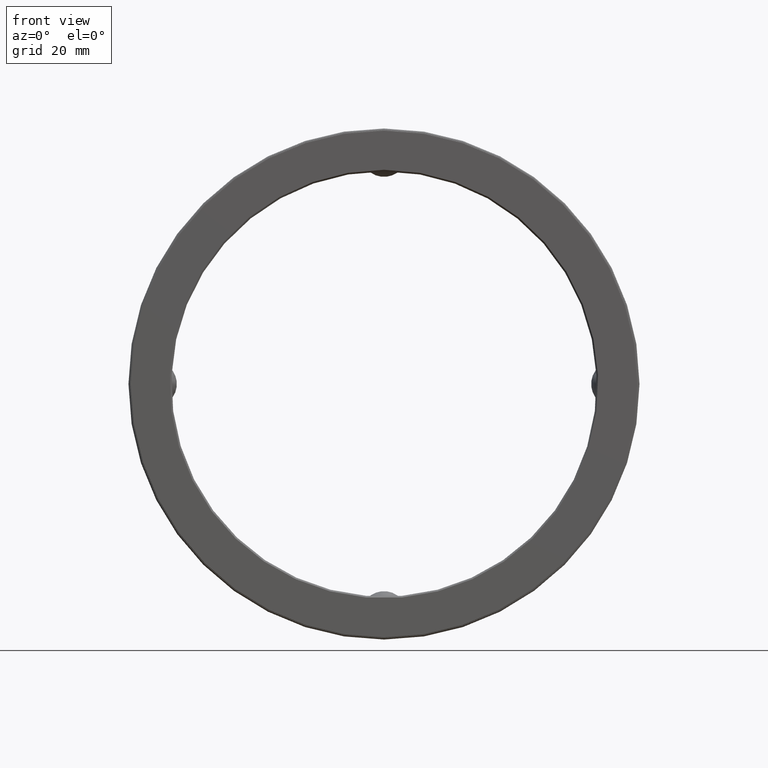
[diagram: clean part render]
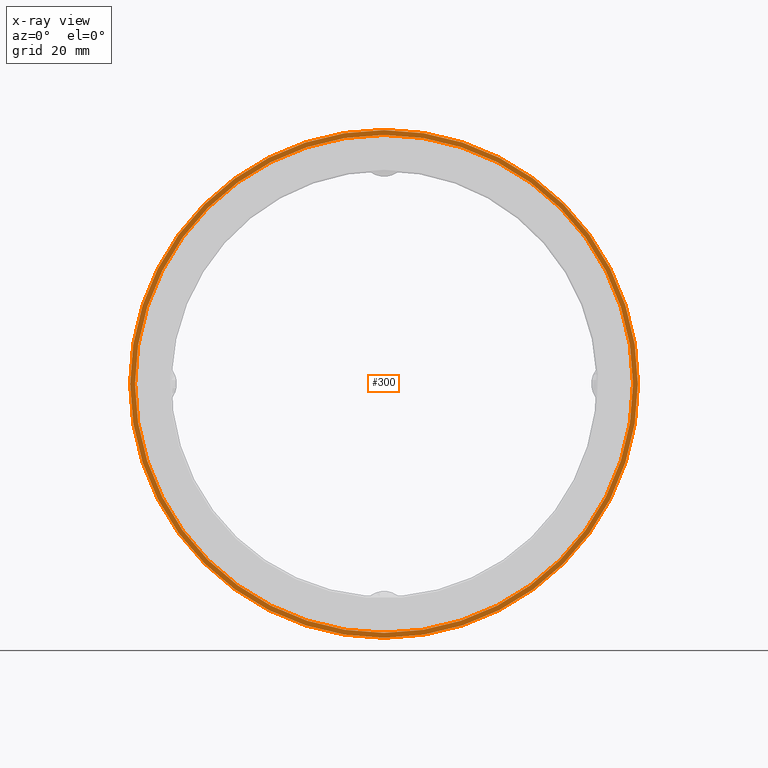
[diagram: x-ray — body ghosted, one internal face saturated and labeled with its STEP entity id]
A machine part, front view, then the same camera in x-ray: the body is ghosted and one INTERNAL B-rep face — a face not visible from any outside direction — is saturated and labeled: STEP entity #300.
In plain terms, the highlighted planar face has unit normal (-0, 1, 0).
Its self-contained STEP definition (entity closure, byte-faithful):
#39 = EDGE_LOOP ( 'NONE', ( #56 ) ) ;
#47 = DIRECTION ( 'NONE',  ( -0.0000000000000000000, 1.000000000000000000, -0.0000000000000000000 ) ) ;
#52 = DIRECTION ( 'NONE',  ( 0.0000000000000000000, 0.0000000000000000000, 1.000000000000000000 ) ) ;
#56 = ORIENTED_EDGE ( 'NONE', *, *, #172, .F. ) ;
#61 = EDGE_CURVE ( 'NONE', #147, #147, #193, .T. ) ;
#108 = EDGE_LOOP ( 'NONE', ( #359 ) ) ;
#132 = AXIS2_PLACEMENT_3D ( 'NONE', #149, #232, #283 ) ;
#147 = VERTEX_POINT ( 'NONE', #307 ) ;
#149 = CARTESIAN_POINT ( 'NONE',  ( 0.0000000000000000000, 1.339999999999999900, 0.0000000000000000000 ) ) ;
#172 = EDGE_CURVE ( 'NONE', #389, #389, #322, .T. ) ;
#193 = CIRCLE ( 'NONE', #477, 3.044999999999999900 ) ;
#232 = DIRECTION ( 'NONE',  ( -0.0000000000000000000, 1.000000000000000000, -0.0000000000000000000 ) ) ;
#243 = DIRECTION ( 'NONE',  ( 0.0000000000000000000, 0.0000000000000000000, 1.000000000000000000 ) ) ;
#255 = CARTESIAN_POINT ( 'NONE',  ( 0.0000000000000000000, 1.339999999999999900, 0.0000000000000000000 ) ) ;
#264 = AXIS2_PLACEMENT_3D ( 'NONE', #523, #392, #243 ) ;
#265 = CARTESIAN_POINT ( 'NONE',  ( 0.0000000000000000000, 1.339999999999999900, 3.105000000000000900 ) ) ;
#283 = DIRECTION ( 'NONE',  ( 0.0000000000000000000, 0.0000000000000000000, 1.000000000000000000 ) ) ;
#300 = ADVANCED_FACE ( 'NONE', ( #474, #303 ), #391, .F. ) ;
#303 = FACE_BOUND ( 'NONE', #108, .T. ) ;
#307 = CARTESIAN_POINT ( 'NONE',  ( 0.0000000000000000000, 1.339999999999999900, 3.044999999999999900 ) ) ;
#322 = CIRCLE ( 'NONE', #132, 3.105000000000000900 ) ;
#359 = ORIENTED_EDGE ( 'NONE', *, *, #61, .T. ) ;
#389 = VERTEX_POINT ( 'NONE', #265 ) ;
#391 = PLANE ( 'NONE',  #264 ) ;
#392 = DIRECTION ( 'NONE',  ( -0.0000000000000000000, 1.000000000000000000, 0.0000000000000000000 ) ) ;
#474 = FACE_OUTER_BOUND ( 'NONE', #39, .T. ) ;
#477 = AXIS2_PLACEMENT_3D ( 'NONE', #255, #47, #52 ) ;
#523 = CARTESIAN_POINT ( 'NONE',  ( 0.0000000000000000000, 1.339999999999999900, 0.0000000000000000000 ) ) ;